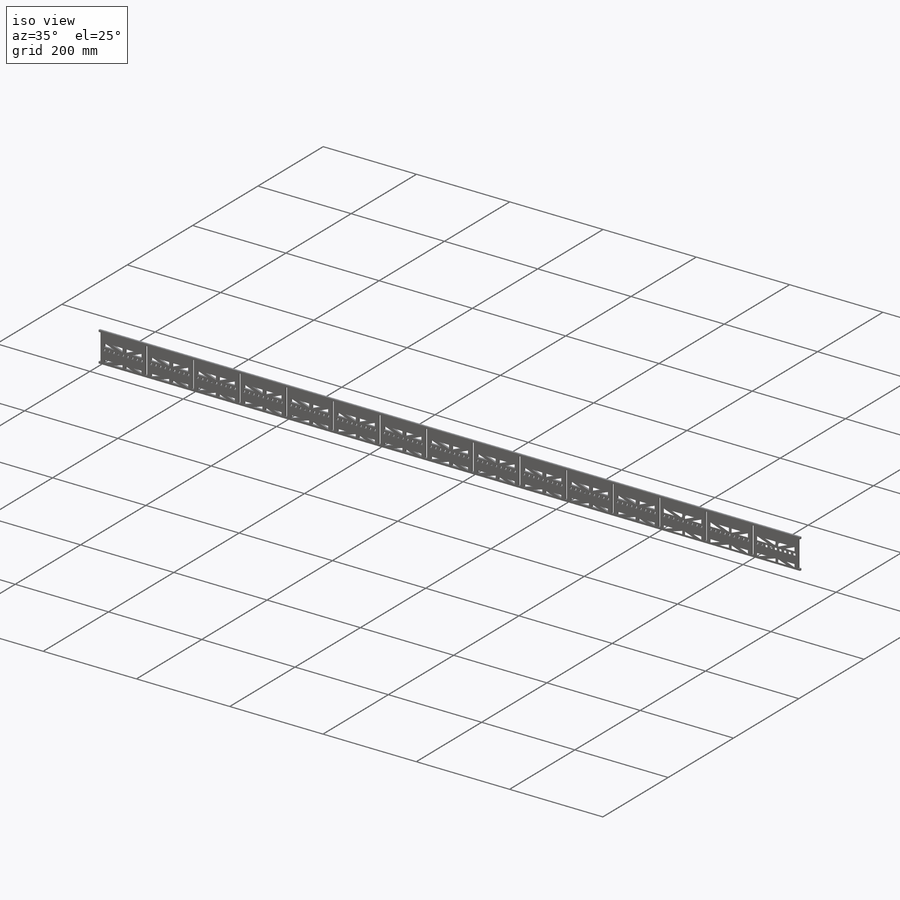
[diagram: iso view]
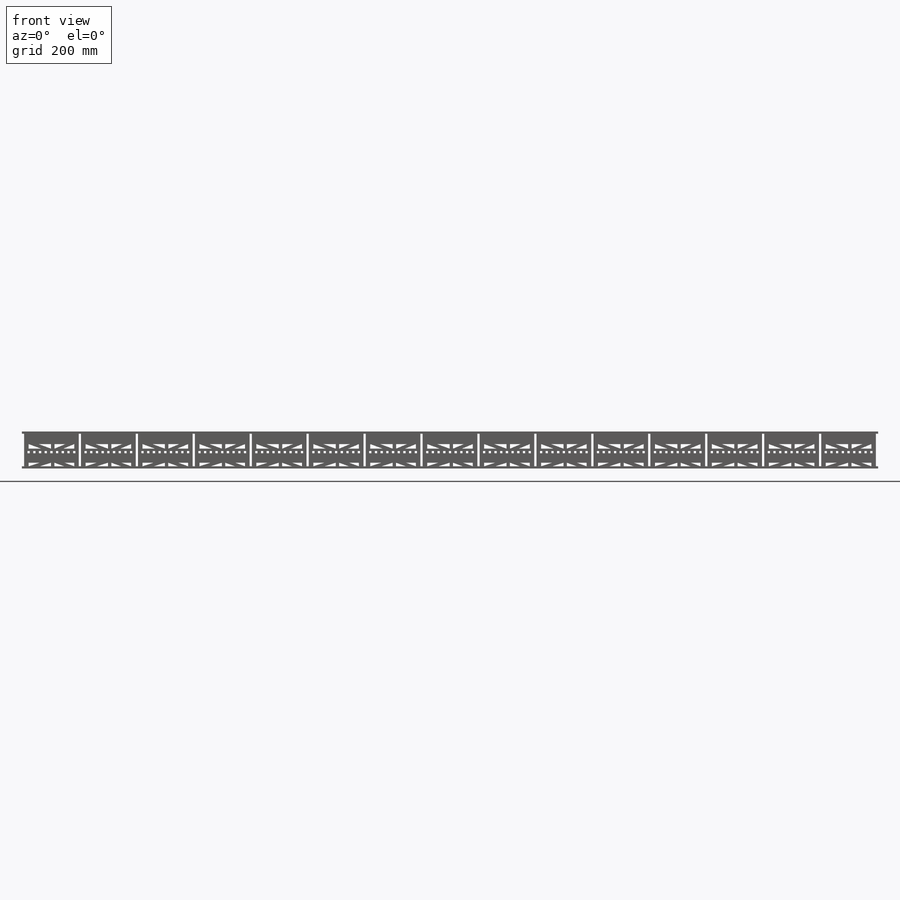
[diagram: front view]
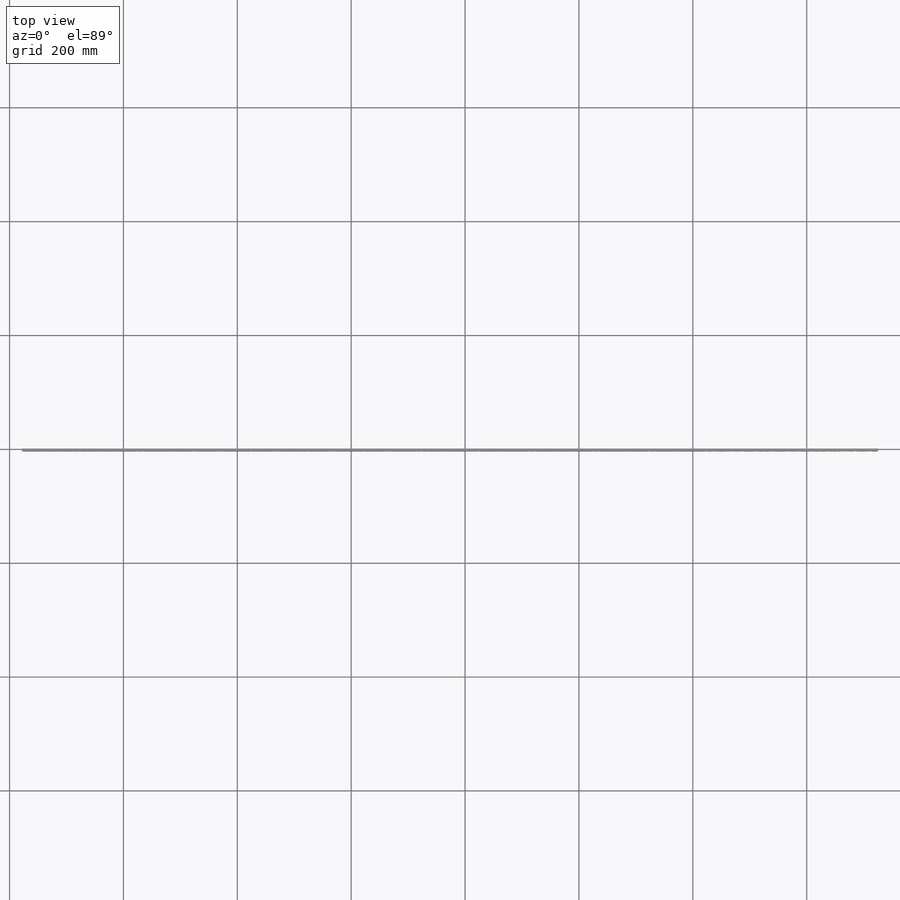
[diagram: top view]
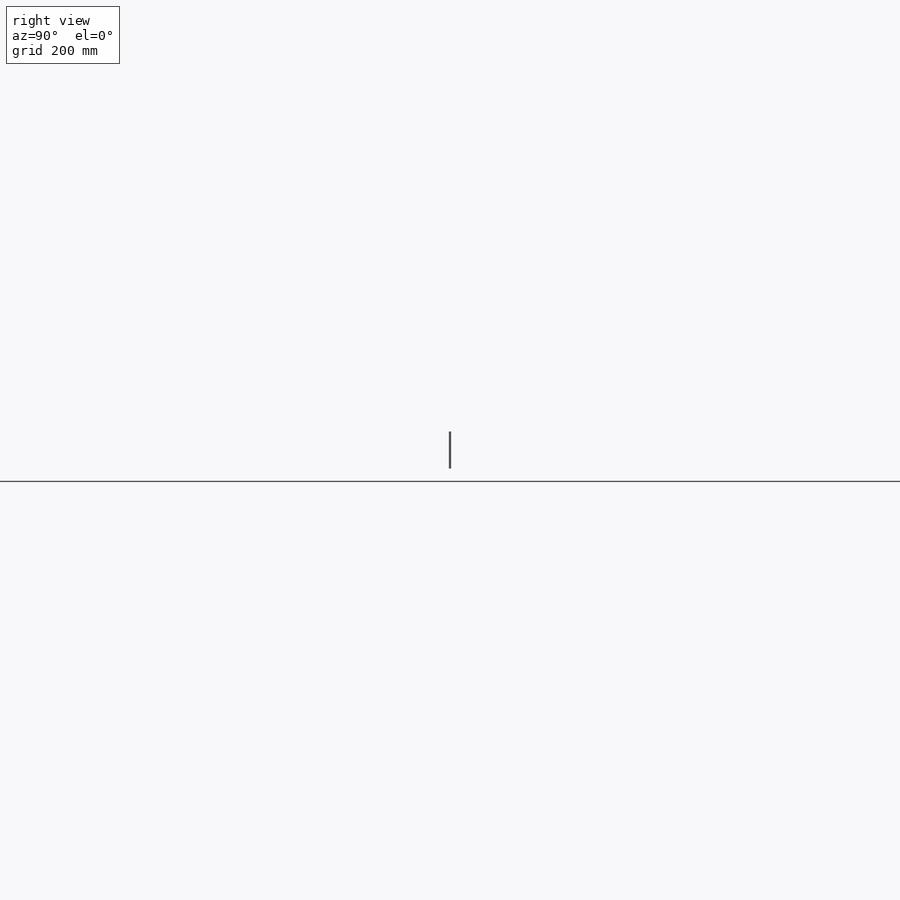
[diagram: right view]
SOLIDWORKS PART (.sldprt)
format: sldprt  version: not decoded by parser v0  size: 1,999,360 bytes
history: native  units: mm
features: sketch x3, extrude x2, material x1, cut_extrude x1 (+13 scaffold rows collapsed)
feature tree (20):
  scaffold x13  (default folders/planes/origin — collapsed)
  material  "Cedar"
  sketch  "Sketch2"  dims[c1.D1=1500.0mm c1.D2=4.0mm c1.D3=4.0mm c1.D4=86.81mm c1.D5=4.0mm c1.D6=12.0mm c1.D7=12.0mm c2.D6=18.0mm c2.D7=0.01mm c2.D8=12.0mm c2.D9=6.0mm c2.D10=6.0mm c2.D11=6.0mm c2.D12=0.01mm c2.D13=8.0mm c2.D14=6.0mm c2.D15=12.0mm c2.D16=12.0mm c3.D6=1500.0mm c3.D4=43.405mm c3.D5=24.0mm c4.D6=24.0mm c4.D7=6.0mm c4.D8=8.0mm c4.D9=24.0mm c4.D10=6.0mm c4.D11=~200.166667mm c4.D12=96.0mm c5.D11=96.0mm c5.D12=4.0mm c5.D14=6.0mm c5.D4=1504.0mm c6.D12=39.405mm c6.D13=~44.668601mm c7.D13=90.0deg c7.D12=24.0mm c7.D11=15.0]
  extrude  "Boss-Extrude1"  Depth=4mm
  sketch  "Sketch3"  dims[c1.D1=1504.0mm c1.D2=4.0mm c1.D3=39.41mm c1.D4=4.0mm c1.D6=4.0mm c2.D3=26.94mm c2.D5=15.0]
  extrude  "Boss-Extrude2"  Depth=4mm
  sketch  "Sketch5"  dims[c1.D1=8.0mm c1.D2=8.0mm c1.D3=~23.17223mm c2.D3=8.0deg c2.6=6.0mm c2.D4=6.0mm c2.D5=6.0mm c2.D6=8.0mm c2.D7=8.0mm c3.D3=20.05mm c3.D9=4.0mm c3.D10=4.0mm c3.D11=3.265mm c3.D6=4.0mm c4.D11=6.0mm c4.D12=88.0mm c4.D2=4.0mm c4.D6=6.0mm c4.D8=8.0mm c5.D2=4.0mm c5.D13=6.0mm c5.D14=6.0mm c5.D15=6.0mm c5.D16=8.0mm c5.D17=8.0mm c5.D18=4.0mm c5.D19=~21.798937mm c6.D19=~0.181265deg c6.D20=~22.135004mm c7.D20=~0.181265deg c8.D20=~22.084764mm c9.D20=~0.181265deg c9.D19=~22.084764mm c10.D19=~0.181265deg c11.D19=4.0mm c11.D18=4.0mm c11.D12=9.0]
  cut_extrude  "Cut-Extrude1"  Depth=10mm
decode coverage: 6 of 6 modeling features carry decoded parameters
note: ~ marks probable driven/reference dimensions
note: suppression state not decoded; provenance and decode notes live in map.json
